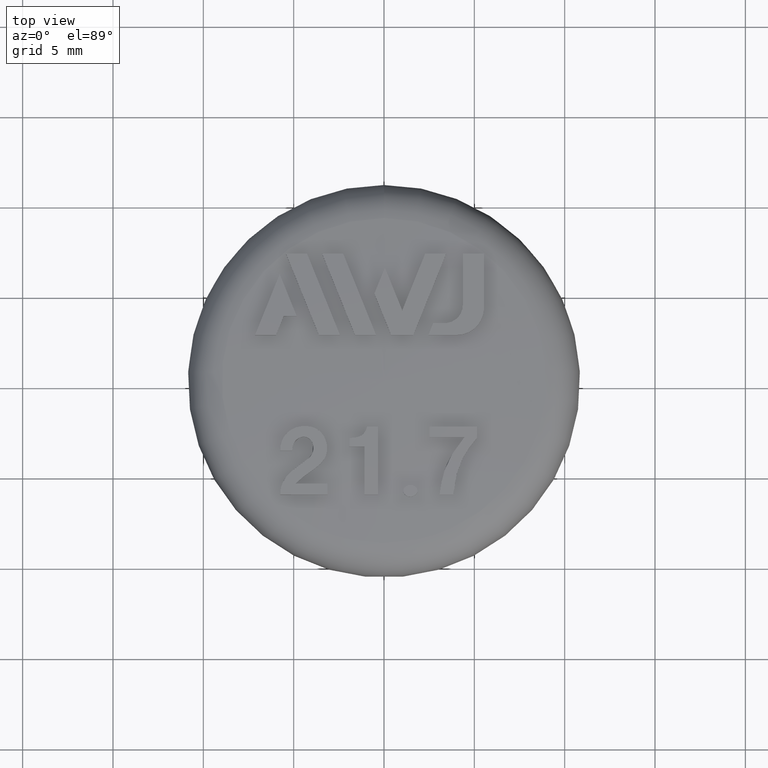
[diagram: clean part render]
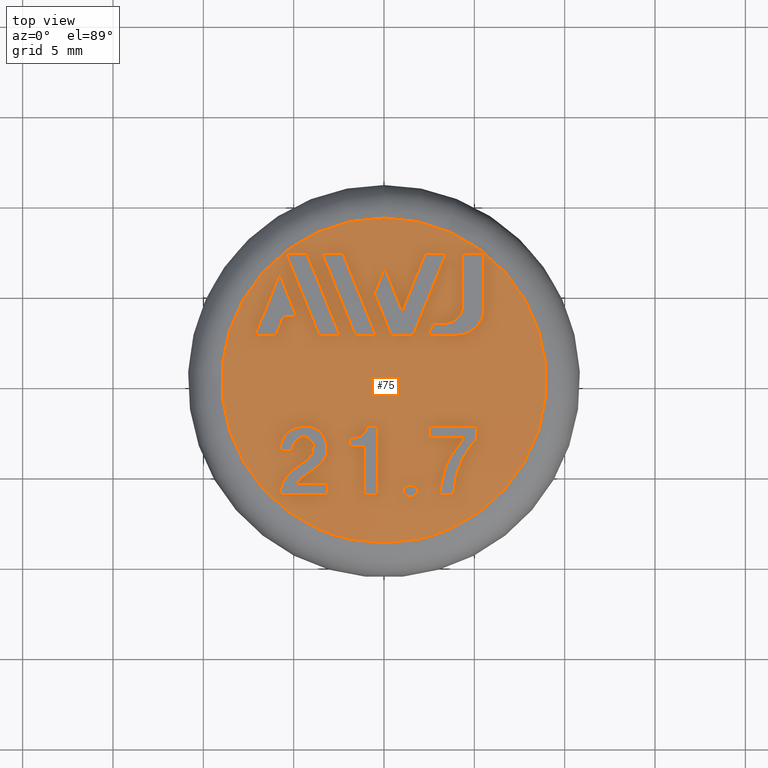
[diagram: same view with one face highlighted and labeled with its STEP entity id]
A machine part, top view. The second image highlights one B-rep face of the part: STEP entity #75.
In plain terms, the highlighted face is a freeform B-spline surface patch.
Its self-contained STEP definition (entity closure, byte-faithful):
#75 = ADVANCED_FACE( '', ( #159, #160, #161, #162, #163, #164, #165, #166, #167, #168, #169 ), #170, .T. );
#159 = FACE_BOUND( '', #359, .T. );
#160 = FACE_BOUND( '', #360, .T. );
#161 = FACE_BOUND( '', #361, .T. );
#162 = FACE_BOUND( '', #362, .T. );
#163 = FACE_BOUND( '', #363, .T. );
#164 = FACE_OUTER_BOUND( '', #364, .T. );
#165 = FACE_BOUND( '', #365, .T. );
#166 = FACE_BOUND( '', #366, .T. );
#167 = FACE_BOUND( '', #367, .T. );
#168 = FACE_BOUND( '', #368, .T. );
#169 = FACE_BOUND( '', #369, .T. );
#170 = ( B_SPLINE_SURFACE( 3, 3, ( ( #371, #372, #373, #374, #375, #376, #377 ), ( #378, #379, #380, #381, #382, #383, #384 ), ( #385, #386, #387, #388, #389, #390, #391 ), ( #392, #393, #394, #395, #396, #397, #398 ) ), .UNSPECIFIED., .F., .T., .F. )B_SPLINE_SURFACE_WITH_KNOTS( ( 4, 4 ), ( 4, 3, 4 ), ( 0.000000000000000, 6.28318530717959 ), ( -1.56095892021141, -1.53096552139604, -1.50097212258067 ), .UNSPECIFIED. )RATIONAL_B_SPLINE_SURFACE( ( ( 1.00000000000000, 0.333333333333333, 0.333333333333333, 1.00000000000000, 0.333333333333333, 0.333333333333333, 1.00000000000000 ), ( 0.999700154488696, 0.333233384829565, 0.333233384829565, 0.999700154488696, 0.333233384829565, 0.333233384829565, 0.999700154488696 ), ( 0.999700154488696, 0.333233384829565, 0.333233384829565, 0.999700154488696, 0.333233384829565, 0.333233384829565, 0.999700154488696 ), ( 1.00000000000000, 0.333333333333333, 0.333333333333333, 1.00000000000000, 0.333333333333333, 0.333333333333333, 1.00000000000000 ) ) )BOUNDED_SURFACE(  )REPRESENTATION_ITEM( '' )GEOMETRIC_REPRESENTATION_ITEM(  )SURFACE(  ) );
#359 = EDGE_LOOP( '', ( #797, #798, #799, #800, #801 ) );
#360 = EDGE_LOOP( '', ( #802, #803, #804, #805 ) );
#361 = EDGE_LOOP( '', ( #806, #807, #808, #809, #810, #811, #812 ) );
#362 = EDGE_LOOP( '', ( #813 ) );
#363 = EDGE_LOOP( '', ( #814, #815, #816, #817, #818, #819 ) );
#364 = EDGE_LOOP( '', ( #820 ) );
#365 = VERTEX_LOOP( '', #821 );
#366 = EDGE_LOOP( '', ( #822, #823, #824, #825, #826, #827, #828 ) );
#367 = EDGE_LOOP( '', ( #829, #830, #831, #832, #833, #834, #835, #836 ) );
#368 = EDGE_LOOP( '', ( #837, #838, #839, #840 ) );
#369 = EDGE_LOOP( '', ( #841, #842, #843, #844, #845, #846, #847 ) );
#371 = CARTESIAN_POINT( '', ( 0.000000000000000, 8.98953496199147, 25.6417501086065 ) );
#372 = CARTESIAN_POINT( '', ( 17.9790699239829, 8.98953496199147, 25.6417501086065 ) );
#373 = CARTESIAN_POINT( '', ( 17.9790699239829, -8.98953496199147, 25.6417501086065 ) );
#374 = CARTESIAN_POINT( '', ( 0.000000000000000, -8.98953496199147, 25.6417501086065 ) );
#375 = CARTESIAN_POINT( '', ( -17.9790699239829, -8.98953496199147, 25.6417501086065 ) );
#376 = CARTESIAN_POINT( '', ( -17.9790699239829, 8.98953496199147, 25.6417501086065 ) );
#377 = CARTESIAN_POINT( '', ( 0.000000000000000, 8.98953496199147, 25.6417501086065 ) );
#378 = CARTESIAN_POINT( '', ( 0.000000000000000, 5.99705493577099, 25.8510378775544 ) );
#379 = CARTESIAN_POINT( '', ( 11.9941098715420, 5.99705493577099, 25.8510378775543 ) );
#380 = CARTESIAN_POINT( '', ( 11.9941098715420, -5.99705493577099, 25.8510378775543 ) );
#381 = CARTESIAN_POINT( '', ( 0.000000000000000, -5.99705493577099, 25.8510378775544 ) );
#382 = CARTESIAN_POINT( '', ( -11.9941098715420, -5.99705493577099, 25.8510378775543 ) );
#383 = CARTESIAN_POINT( '', ( -11.9941098715420, 5.99705493577099, 25.8510378775543 ) );
#384 = CARTESIAN_POINT( '', ( 0.000000000000000, 5.99705493577099, 25.8510378775544 ) );
#385 = CARTESIAN_POINT( '', ( 0.000000000000000, 2.99964452171564, 25.9704903252991 ) );
#386 = CARTESIAN_POINT( '', ( 5.99928904343128, 2.99964452171564, 25.9704903252991 ) );
#387 = CARTESIAN_POINT( '', ( 5.99928904343128, -2.99964452171564, 25.9704903252991 ) );
#388 = CARTESIAN_POINT( '', ( 0.000000000000000, -2.99964452171564, 25.9704903252991 ) );
#389 = CARTESIAN_POINT( '', ( -5.99928904343128, -2.99964452171564, 25.9704903252991 ) );
#390 = CARTESIAN_POINT( '', ( -5.99928904343128, 2.99964452171564, 25.9704903252991 ) );
#391 = CARTESIAN_POINT( '', ( 0.000000000000000, 2.99964452171564, 25.9704903252991 ) );
#392 = CARTESIAN_POINT( '', ( 0.000000000000000, -1.40946282423116E-014, 26.0000000000000 ) );
#393 = CARTESIAN_POINT( '', ( -2.86790990261521E-014, -1.40946282423116E-014, 26.0000000000000 ) );
#394 = CARTESIAN_POINT( '', ( -2.86790990261521E-014, 1.45844707838405E-014, 26.0000000000000 ) );
#395 = CARTESIAN_POINT( '', ( 0.000000000000000, 1.45844707838405E-014, 26.0000000000000 ) );
#396 = CARTESIAN_POINT( '', ( 2.86790990261521E-014, 1.45844707838405E-014, 26.0000000000000 ) );
#397 = CARTESIAN_POINT( '', ( 2.86790990261521E-014, -1.40946282423116E-014, 26.0000000000000 ) );
#398 = CARTESIAN_POINT( '', ( 0.000000000000000, -1.40946282423116E-014, 26.0000000000000 ) );
#797 = ORIENTED_EDGE( '', *, *, #1403, .F. );
#798 = ORIENTED_EDGE( '', *, *, #1404, .F. );
#799 = ORIENTED_EDGE( '', *, *, #1405, .F. );
#800 = ORIENTED_EDGE( '', *, *, #1406, .F. );
#801 = ORIENTED_EDGE( '', *, *, #1407, .F. );
#802 = ORIENTED_EDGE( '', *, *, #1408, .F. );
#803 = ORIENTED_EDGE( '', *, *, #1409, .F. );
#804 = ORIENTED_EDGE( '', *, *, #1410, .F. );
#805 = ORIENTED_EDGE( '', *, *, #1411, .F. );
#806 = ORIENTED_EDGE( '', *, *, #1412, .F. );
#807 = ORIENTED_EDGE( '', *, *, #1413, .F. );
#808 = ORIENTED_EDGE( '', *, *, #1414, .F. );
#809 = ORIENTED_EDGE( '', *, *, #1415, .F. );
#810 = ORIENTED_EDGE( '', *, *, #1416, .F. );
#811 = ORIENTED_EDGE( '', *, *, #1417, .F. );
#812 = ORIENTED_EDGE( '', *, *, #1418, .F. );
#813 = ORIENTED_EDGE( '', *, *, #1419, .T. );
#814 = ORIENTED_EDGE( '', *, *, #1420, .F. );
#815 = ORIENTED_EDGE( '', *, *, #1421, .F. );
#816 = ORIENTED_EDGE( '', *, *, #1422, .F. );
#817 = ORIENTED_EDGE( '', *, *, #1423, .F. );
#818 = ORIENTED_EDGE( '', *, *, #1424, .F. );
#819 = ORIENTED_EDGE( '', *, *, #1425, .F. );
#820 = ORIENTED_EDGE( '', *, *, #1426, .F. );
#821 = VERTEX_POINT( '', #1427 );
#822 = ORIENTED_EDGE( '', *, *, #1428, .F. );
#823 = ORIENTED_EDGE( '', *, *, #1429, .F. );
#824 = ORIENTED_EDGE( '', *, *, #1430, .F. );
#825 = ORIENTED_EDGE( '', *, *, #1431, .F. );
#826 = ORIENTED_EDGE( '', *, *, #1432, .F. );
#827 = ORIENTED_EDGE( '', *, *, #1433, .F. );
#828 = ORIENTED_EDGE( '', *, *, #1434, .F. );
#829 = ORIENTED_EDGE( '', *, *, #1435, .F. );
#830 = ORIENTED_EDGE( '', *, *, #1436, .F. );
#831 = ORIENTED_EDGE( '', *, *, #1437, .F. );
#832 = ORIENTED_EDGE( '', *, *, #1438, .F. );
#833 = ORIENTED_EDGE( '', *, *, #1439, .F. );
#834 = ORIENTED_EDGE( '', *, *, #1440, .F. );
#835 = ORIENTED_EDGE( '', *, *, #1441, .F. );
#836 = ORIENTED_EDGE( '', *, *, #1442, .F. );
#837 = ORIENTED_EDGE( '', *, *, #1443, .F. );
#838 = ORIENTED_EDGE( '', *, *, #1444, .F. );
#839 = ORIENTED_EDGE( '', *, *, #1445, .F. );
#840 = ORIENTED_EDGE( '', *, *, #1446, .F. );
#841 = ORIENTED_EDGE( '', *, *, #1447, .F. );
#842 = ORIENTED_EDGE( '', *, *, #1448, .F. );
#843 = ORIENTED_EDGE( '', *, *, #1449, .F. );
#844 = ORIENTED_EDGE( '', *, *, #1450, .F. );
#845 = ORIENTED_EDGE( '', *, *, #1451, .F. );
#846 = ORIENTED_EDGE( '', *, *, #1452, .F. );
#847 = ORIENTED_EDGE( '', *, *, #1453, .F. );
#1403 = EDGE_CURVE( '', #1574, #1575, #1576, .T. );
#1404 = EDGE_CURVE( '', #1577, #1574, #1578, .T. );
#1405 = EDGE_CURVE( '', #1579, #1577, #1580, .T. );
#1406 = EDGE_CURVE( '', #1581, #1579, #1582, .T. );
#1407 = EDGE_CURVE( '', #1575, #1581, #1583, .T. );
#1408 = EDGE_CURVE( '', #1584, #1585, #1586, .T. );
#1409 = EDGE_CURVE( '', #1587, #1584, #1588, .T. );
#1410 = EDGE_CURVE( '', #1589, #1587, #1590, .T. );
#1411 = EDGE_CURVE( '', #1585, #1589, #1591, .T. );
#1412 = EDGE_CURVE( '', #1592, #1593, #1594, .T. );
#1413 = EDGE_CURVE( '', #1595, #1592, #1596, .T. );
#1414 = EDGE_CURVE( '', #1597, #1595, #1598, .T. );
#1415 = EDGE_CURVE( '', #1599, #1597, #1600, .T. );
#1416 = EDGE_CURVE( '', #1601, #1599, #1602, .T. );
#1417 = EDGE_CURVE( '', #1603, #1601, #1604, .T. );
#1418 = EDGE_CURVE( '', #1593, #1603, #1605, .T. );
#1419 = EDGE_CURVE( '', #1606, #1606, #1607, .T. );
#1420 = EDGE_CURVE( '', #1608, #1609, #1610, .T. );
#1421 = EDGE_CURVE( '', #1611, #1608, #1612, .T. );
#1422 = EDGE_CURVE( '', #1613, #1611, #1614, .T. );
#1423 = EDGE_CURVE( '', #1615, #1613, #1616, .T. );
#1424 = EDGE_CURVE( '', #1617, #1615, #1618, .T. );
#1425 = EDGE_CURVE( '', #1609, #1617, #1619, .T. );
#1426 = EDGE_CURVE( '', #1620, #1620, #1621, .T. );
#1427 = CARTESIAN_POINT( '', ( -2.16840434497101E-016, 2.44921270764477E-016, 26.0000000000000 ) );
#1428 = EDGE_CURVE( '', #1622, #1623, #1624, .T. );
#1429 = EDGE_CURVE( '', #1625, #1622, #1626, .T. );
#1430 = EDGE_CURVE( '', #1627, #1625, #1628, .T. );
#1431 = EDGE_CURVE( '', #1629, #1627, #1630, .T. );
#1432 = EDGE_CURVE( '', #1631, #1629, #1632, .T. );
#1433 = EDGE_CURVE( '', #1633, #1631, #1634, .T. );
#1434 = EDGE_CURVE( '', #1623, #1633, #1635, .T. );
#1435 = EDGE_CURVE( '', #1636, #1637, #1638, .T. );
#1436 = EDGE_CURVE( '', #1639, #1636, #1640, .T. );
#1437 = EDGE_CURVE( '', #1641, #1639, #1642, .T. );
#1438 = EDGE_CURVE( '', #1643, #1641, #1644, .T. );
#1439 = EDGE_CURVE( '', #1645, #1643, #1646, .T. );
#1440 = EDGE_CURVE( '', #1647, #1645, #1648, .T. );
#1441 = EDGE_CURVE( '', #1649, #1647, #1650, .T. );
#1442 = EDGE_CURVE( '', #1637, #1649, #1651, .T. );
#1443 = EDGE_CURVE( '', #1652, #1653, #1654, .T. );
#1444 = EDGE_CURVE( '', #1655, #1652, #1656, .T. );
#1445 = EDGE_CURVE( '', #1657, #1655, #1658, .T. );
#1446 = EDGE_CURVE( '', #1653, #1657, #1659, .T. );
#1447 = EDGE_CURVE( '', #1660, #1661, #1662, .T. );
#1448 = EDGE_CURVE( '', #1663, #1660, #1664, .T. );
#1449 = EDGE_CURVE( '', #1665, #1663, #1666, .T. );
#1450 = EDGE_CURVE( '', #1667, #1665, #1668, .T. );
#1451 = EDGE_CURVE( '', #1669, #1667, #1670, .T. );
#1452 = EDGE_CURVE( '', #1671, #1669, #1672, .T. );
#1453 = EDGE_CURVE( '', #1661, #1671, #1673, .T. );
#1574 = VERTEX_POINT( '', #1866 );
#1575 = VERTEX_POINT( '', #1867 );
#1576 = B_SPLINE_CURVE_WITH_KNOTS( '', 3, ( #1868, #1869, #1870, #1871 ), .UNSPECIFIED., .F., .F., ( 4, 4 ), ( 2.15753164422572E-007, 0.00363668813933032 ), .UNSPECIFIED. );
#1577 = VERTEX_POINT( '', #1872 );
#1578 = B_SPLINE_CURVE_WITH_KNOTS( '', 3, ( #1873, #1874, #1875, #1876 ), .UNSPECIFIED., .F., .F., ( 4, 4 ), ( 2.15877947512081E-007, 0.00251950999364951 ), .UNSPECIFIED. );
#1579 = VERTEX_POINT( '', #1877 );
#1580 = B_SPLINE_CURVE_WITH_KNOTS( '', 3, ( #1878, #1879, #1880, #1881, #1882, #1883 ), .UNSPECIFIED., .F., .F., ( 4, 2, 4 ), ( 0.944590249355854, 0.944951902050673, 0.945313554745493 ), .UNSPECIFIED. );
#1581 = VERTEX_POINT( '', #1884 );
#1582 = B_SPLINE_CURVE_WITH_KNOTS( '', 3, ( #1885, #1886, #1887, #1888 ), .UNSPECIFIED., .F., .F., ( 4, 4 ), ( 2.15726755502883E-007, 0.00112047704000817 ), .UNSPECIFIED. );
#1583 = B_SPLINE_CURVE_WITH_KNOTS( '', 3, ( #1889, #1890, #1891, #1892, #1893, #1894 ), .UNSPECIFIED., .F., .F., ( 4, 2, 4 ), ( 0.944770910898295, 0.945352700298914, 0.945934489699534 ), .UNSPECIFIED. );
#1584 = VERTEX_POINT( '', #1895 );
#1585 = VERTEX_POINT( '', #1896 );
#1586 = B_SPLINE_CURVE_WITH_KNOTS( '', 3, ( #1897, #1898, #1899, #1900, #1901, #1902 ), .UNSPECIFIED., .F., .F., ( 4, 2, 4 ), ( 0.944696127065317, 0.945277433020610, 0.945858738975903 ), .UNSPECIFIED. );
#1587 = VERTEX_POINT( '', #1903 );
#1588 = B_SPLINE_CURVE_WITH_KNOTS( '', 3, ( #1904, #1905, #1906, #1907 ), .UNSPECIFIED., .F., .F., ( 4, 4 ), ( 2.16092323871086E-007, 0.00485515278388468 ), .UNSPECIFIED. );
#1589 = VERTEX_POINT( '', #1908 );
#1590 = B_SPLINE_CURVE_WITH_KNOTS( '', 3, ( #1909, #1910, #1911, #1912, #1913, #1914 ), .UNSPECIFIED., .F., .F., ( 4, 2, 4 ), ( 0.943262957051304, 0.943844024714291, 0.944425092377277 ), .UNSPECIFIED. );
#1591 = B_SPLINE_CURVE_WITH_KNOTS( '', 3, ( #1915, #1916, #1917, #1918 ), .UNSPECIFIED., .F., .F., ( 4, 4 ), ( 2.15776270848999E-007, 0.00485467562281113 ), .UNSPECIFIED. );
#1592 = VERTEX_POINT( '', #1919 );
#1593 = VERTEX_POINT( '', #1920 );
#1594 = B_SPLINE_CURVE_WITH_KNOTS( '', 3, ( #1921, #1922, #1923, #1924, #1925, #1926 ), .UNSPECIFIED., .F., .F., ( 4, 2, 4 ), ( 0.943616339389011, 0.944926302673473, 0.946236265957935 ), .UNSPECIFIED. );
#1595 = VERTEX_POINT( '', #1927 );
#1596 = B_SPLINE_CURVE_WITH_KNOTS( '', 3, ( #1928, #1929, #1930, #1931, #1932, #1933 ), .UNSPECIFIED., .F., .F., ( 4, 2, 4 ), ( 0.944150040501290, 0.944468296561609, 0.944786552621928 ), .UNSPECIFIED. );
#1597 = VERTEX_POINT( '', #1934 );
#1598 = B_SPLINE_CURVE_WITH_KNOTS( '', 3, ( #1935, #1936, #1937, #1938, #1939, #1940, #1941, #1942, #1943, #1944 ), .UNSPECIFIED., .F., .F., ( 4, 2, 2, 2, 4 ), ( 0.000000000000000, 0.000871578972149876, 0.00174315794429975, 0.00261473691644963, 0.00348631588859951 ), .UNSPECIFIED. );
#1599 = VERTEX_POINT( '', #1945 );
#1600 = B_SPLINE_CURVE_WITH_KNOTS( '', 3, ( #1946, #1947, #1948, #1949, #1950, #1951 ), .UNSPECIFIED., .F., .F., ( 4, 2, 4 ), ( 0.943720692822601, 0.944102630472798, 0.944484568122996 ), .UNSPECIFIED. );
#1601 = VERTEX_POINT( '', #1952 );
#1602 = B_SPLINE_CURVE_WITH_KNOTS( '', 3, ( #1953, #1954, #1955, #1956, #1957, #1958, #1959, #1960, #1961, #1962 ), .UNSPECIFIED., .F., .F., ( 4, 2, 2, 2, 4 ), ( 0.000000000000000, 0.000883176503601131, 0.00176635300720226, 0.00264952951080339, 0.00353270601440453 ), .UNSPECIFIED. );
#1603 = VERTEX_POINT( '', #1963 );
#1604 = B_SPLINE_CURVE_WITH_KNOTS( '', 3, ( #1964, #1965, #1966, #1967, #1968, #1969 ), .UNSPECIFIED., .F., .F., ( 4, 2, 4 ), ( 0.943853214456466, 0.944813596997099, 0.945773979537732 ), .UNSPECIFIED. );
#1605 = B_SPLINE_CURVE_WITH_KNOTS( '', 3, ( #1970, #1971, #1972, #1973, #1974, #1975 ), .UNSPECIFIED., .F., .F., ( 4, 2, 4 ), ( 0.944374504958248, 0.944674489245881, 0.944974473533513 ), .UNSPECIFIED. );
#1606 = VERTEX_POINT( '', #1976 );
#1607 = B_SPLINE_CURVE_WITH_KNOTS( '', 3, ( #1977, #1978, #1979, #1980, #1981, #1982, #1983, #1984, #1985, #1986, #1987, #1988, #1989, #1990, #1991, #1992, #1993, #1994, #1995, #1996, #1997, #1998, #1999, #2000, #2001, #2002 ), .UNSPECIFIED., .T., .F., ( 2, 2, 2, 2, 2, 2, 2, 2, 2, 2, 2, 2, 2, 2, 2 ), ( -0.000280127490306940, 0.000000000000000, 0.000280127490306942, 0.000420191235460413, 0.000560254980613883, 0.000700318725767354, 0.000840382470920825, 0.00112050996122777, 0.00140063745153471, 0.00154070119668818, 0.00168076494184165, 0.00182082868699512, 0.00196089243214859, 0.00224101992245553, 0.00252114741276247 ), .UNSPECIFIED. );
#1608 = VERTEX_POINT( '', #2003 );
#1609 = VERTEX_POINT( '', #2004 );
#1610 = B_SPLINE_CURVE_WITH_KNOTS( '', 3, ( #2005, #2006, #2007, #2008, #2009, #2010 ), .UNSPECIFIED., .F., .F., ( 4, 2, 4 ), ( 0.943383864945581, 0.944267948269576, 0.945152031593570 ), .UNSPECIFIED. );
#1611 = VERTEX_POINT( '', #2011 );
#1612 = B_SPLINE_CURVE_WITH_KNOTS( '', 3, ( #2012, #2013, #2014, #2015, #2016, #2017 ), .UNSPECIFIED., .F., .F., ( 4, 2, 4 ), ( 0.944760673953935, 0.945061068960873, 0.945361463967811 ), .UNSPECIFIED. );
#1613 = VERTEX_POINT( '', #2018 );
#1614 = B_SPLINE_CURVE_WITH_KNOTS( '', 3, ( #2019, #2020, #2021, #2022, #2023, #2024 ), .UNSPECIFIED., .F., .F., ( 4, 2, 4 ), ( 0.942917086239352, 0.944227160788539, 0.945537235337727 ), .UNSPECIFIED. );
#1615 = VERTEX_POINT( '', #2025 );
#1616 = B_SPLINE_CURVE_WITH_KNOTS( '', 3, ( #2026, #2027, #2028, #2029, #2030, #2031, #2032, #2033, #2034, #2035, #2036, #2037, #2038, #2039, #2040, #2041, #2042, #2043, #2044, #2045, #2046, #2047, #2048, #2049, #2050, #2051, #2052, #2053, #2054, #2055, #2056, #2057, #2058, #2059 ), .UNSPECIFIED., .F., .F., ( 4, 2, 2, 2, 2, 2, 2, 2, 2, 2, 2, 2, 2, 2, 2, 2, 4 ), ( 0.000000000000000, 0.000331152226651329, 0.000662304453302658, 0.000827880566628322, 0.000993456679953986, 0.00115903279327965, 0.00132460890660531, 0.00165576113325664, 0.00198691335990797, 0.00231806558655930, 0.00264921781321063, 0.00298037003986196, 0.00331152226651329, 0.00397382671981594, 0.00463613117311860, 0.00496728339976993, 0.00529843562642126 ), .UNSPECIFIED. );
#1617 = VERTEX_POINT( '', #2060 );
#1618 = B_SPLINE_CURVE_WITH_KNOTS( '', 3, ( #2061, #2062, #2063, #2064, #2065, #2066 ), .UNSPECIFIED., .F., .F., ( 4, 2, 4 ), ( 0.944556335513515, 0.944883952290048, 0.945211569066581 ), .UNSPECIFIED. );
#1619 = B_SPLINE_CURVE_WITH_KNOTS( '', 3, ( #2067, #2068, #2069, #2070, #2071, #2072, #2073, #2074, #2075, #2076, #2077, #2078, #2079, #2080, #2081, #2082, #2083, #2084, #2085, #2086, #2087, #2088, #2089, #2090, #2091, #2092, #2093, #2094, #2095, #2096, #2097, #2098, #2099, #2100, #2101, #2102 ), .UNSPECIFIED., .F., .F., ( 4, 2, 2, 2, 2, 2, 2, 2, 2, 2, 2, 2, 2, 2, 2, 2, 2, 4 ), ( 0.000000000000000, 0.000212727333888267, 0.000425454667776533, 0.000850909335553067, 0.00127636400332960, 0.00170181867110613, 0.00212727333888267, 0.00255272800665920, 0.00297818267443573, 0.00340363734221226, 0.00382909200998879, 0.00425454667776532, 0.00468000134554186, 0.00510545601331839, 0.00553091068109492, 0.00595636534887145, 0.00638182001664798, 0.00680727468442451 ), .UNSPECIFIED. );
#1620 = VERTEX_POINT( '', #2103 );
#1621 = CIRCLE( '', #2104, 8.98953496199148 );
#1622 = VERTEX_POINT( '', #2105 );
#1623 = VERTEX_POINT( '', #2106 );
#1624 = B_SPLINE_CURVE_WITH_KNOTS( '', 3, ( #2107, #2108, #2109, #2110, #2111, #2112, #2113, #2114, #2115, #2116 ), .UNSPECIFIED., .F., .F., ( 4, 2, 2, 2, 4 ), ( 4.84869951806108E-019, 0.000317296503478030, 0.000634593006956060, 0.000951889510434089, 0.00126918601391212 ), .UNSPECIFIED. );
#1625 = VERTEX_POINT( '', #2117 );
#1626 = B_SPLINE_CURVE_WITH_KNOTS( '', 3, ( #2118, #2119, #2120, #2121, #2122, #2123 ), .UNSPECIFIED., .F., .F., ( 4, 2, 4 ), ( 0.944902179747818, 0.945207727560565, 0.945513275373312 ), .UNSPECIFIED. );
#1627 = VERTEX_POINT( '', #2124 );
#1628 = B_SPLINE_CURVE_WITH_KNOTS( '', 3, ( #2125, #2126, #2127, #2128, #2129, #2130 ), .UNSPECIFIED., .F., .F., ( 4, 2, 4 ), ( 0.943464461131691, 0.945339217355133, 0.947213973578576 ), .UNSPECIFIED. );
#1629 = VERTEX_POINT( '', #2131 );
#1630 = B_SPLINE_CURVE_WITH_KNOTS( '', 3, ( #2132, #2133, #2134, #2135, #2136, #2137 ), .UNSPECIFIED., .F., .F., ( 4, 2, 4 ), ( 0.943796103350487, 0.944166998594483, 0.944537893838478 ), .UNSPECIFIED. );
#1631 = VERTEX_POINT( '', #2138 );
#1632 = B_SPLINE_CURVE_WITH_KNOTS( '', 3, ( #2139, #2140, #2141, #2142, #2143, #2144 ), .UNSPECIFIED., .F., .F., ( 4, 2, 4 ), ( 0.943206226589398, 0.944534225579990, 0.945862224570582 ), .UNSPECIFIED. );
#1633 = VERTEX_POINT( '', #2145 );
#1634 = B_SPLINE_CURVE_WITH_KNOTS( '', 3, ( #2146, #2147, #2148, #2149, #2150, #2151 ), .UNSPECIFIED., .F., .F., ( 4, 2, 4 ), ( 0.944300513972057, 0.944725946593636, 0.945151379215215 ), .UNSPECIFIED. );
#1635 = B_SPLINE_CURVE_WITH_KNOTS( '', 3, ( #2152, #2153, #2154, #2155, #2156, #2157 ), .UNSPECIFIED., .F., .F., ( 4, 2, 4 ), ( 0.944456439210992, 0.944683725786204, 0.944911012361416 ), .UNSPECIFIED. );
#1636 = VERTEX_POINT( '', #2158 );
#1637 = VERTEX_POINT( '', #2159 );
#1638 = B_SPLINE_CURVE_WITH_KNOTS( '', 3, ( #2160, #2161, #2162, #2163, #2164, #2165 ), .UNSPECIFIED., .F., .F., ( 4, 2, 4 ), ( 0.943440287077963, 0.944028320268851, 0.944616353459739 ), .UNSPECIFIED. );
#1639 = VERTEX_POINT( '', #2166 );
#1640 = B_SPLINE_CURVE_WITH_KNOTS( '', 3, ( #2167, #2168, #2169, #2170, #2171, #2172 ), .UNSPECIFIED., .F., .F., ( 4, 2, 4 ), ( 0.942867419981177, 0.944367337210816, 0.945867254440456 ), .UNSPECIFIED. );
#1641 = VERTEX_POINT( '', #2173 );
#1642 = B_SPLINE_CURVE_WITH_KNOTS( '', 3, ( #2174, #2175, #2176, #2177, #2178, #2179, #2180, #2181, #2182, #2183, #2184, #2185, #2186, #2187 ), .UNSPECIFIED., .F., .F., ( 4, 2, 2, 2, 2, 2, 4 ), ( 8.42476020472982E-005, 0.000377746319178769, 0.000671245036310240, 0.00125824247057318, 0.00184523990483613, 0.00213873862196760, 0.00243223733909907 ), .UNSPECIFIED. );
#1643 = VERTEX_POINT( '', #2188 );
#1644 = B_SPLINE_CURVE_WITH_KNOTS( '', 3, ( #2189, #2190, #2191, #2192, #2193, #2194 ), .UNSPECIFIED., .F., .F., ( 4, 2, 4 ), ( 0.944129994252138, 0.944919293244353, 0.945708592236568 ), .UNSPECIFIED. );
#1645 = VERTEX_POINT( '', #2195 );
#1646 = B_SPLINE_CURVE_WITH_KNOTS( '', 3, ( #2196, #2197, #2198, #2199 ), .UNSPECIFIED., .F., .F., ( 4, 4 ), ( 2.15843115163035E-007, 0.000705864440400253 ), .UNSPECIFIED. );
#1647 = VERTEX_POINT( '', #2200 );
#1648 = B_SPLINE_CURVE_WITH_KNOTS( '', 3, ( #2201, #2202, #2203, #2204, #2205, #2206 ), .UNSPECIFIED., .F., .F., ( 4, 2, 4 ), ( 0.944504175820526, 0.944823626889192, 0.945143077957859 ), .UNSPECIFIED. );
#1649 = VERTEX_POINT( '', #2207 );
#1650 = B_SPLINE_CURVE_WITH_KNOTS( '', 3, ( #2208, #2209, #2210, #2211, #2212, #2213, #2214, #2215, #2216, #2217 ), .UNSPECIFIED., .F., .F., ( 4, 2, 2, 2, 4 ), ( 5.62197966612846E-005, 0.000447518793699432, 0.000838817790737579, 0.00123011678777573, 0.00162141578481387 ), .UNSPECIFIED. );
#1651 = B_SPLINE_CURVE_WITH_KNOTS( '', 3, ( #2218, #2219, #2220, #2221, #2222, #2223 ), .UNSPECIFIED., .F., .F., ( 4, 2, 4 ), ( 0.943359903531679, 0.944783017210247, 0.946206130888815 ), .UNSPECIFIED. );
#1652 = VERTEX_POINT( '', #2224 );
#1653 = VERTEX_POINT( '', #2225 );
#1654 = B_SPLINE_CURVE_WITH_KNOTS( '', 3, ( #2226, #2227, #2228, #2229, #2230, #2231 ), .UNSPECIFIED., .F., .F., ( 4, 2, 4 ), ( 0.944445710517553, 0.945026876897312, 0.945608043277072 ), .UNSPECIFIED. );
#1655 = VERTEX_POINT( '', #2232 );
#1656 = B_SPLINE_CURVE_WITH_KNOTS( '', 3, ( #2233, #2234, #2235, #2236 ), .UNSPECIFIED., .F., .F., ( 4, 4 ), ( 2.16151314809661E-007, 0.00485604835334027 ), .UNSPECIFIED. );
#1657 = VERTEX_POINT( '', #2237 );
#1658 = B_SPLINE_CURVE_WITH_KNOTS( '', 3, ( #2238, #2239, #2240, #2241, #2242, #2243 ), .UNSPECIFIED., .F., .F., ( 4, 2, 4 ), ( 0.943591665259866, 0.944172812440224, 0.944753959620582 ), .UNSPECIFIED. );
#1659 = B_SPLINE_CURVE_WITH_KNOTS( '', 3, ( #2244, #2245, #2246, #2247 ), .UNSPECIFIED., .F., .F., ( 4, 4 ), ( 2.15796024448861E-007, 0.00485561903381285 ), .UNSPECIFIED. );
#1660 = VERTEX_POINT( '', #2248 );
#1661 = VERTEX_POINT( '', #2249 );
#1662 = B_SPLINE_CURVE_WITH_KNOTS( '', 3, ( #2250, #2251, #2252, #2253 ), .UNSPECIFIED., .F., .F., ( 4, 4 ), ( 2.15786343880670E-007, 0.00485514746944646 ), .UNSPECIFIED. );
#1663 = VERTEX_POINT( '', #2254 );
#1664 = B_SPLINE_CURVE_WITH_KNOTS( '', 3, ( #2255, #2256, #2257, #2258, #2259, #2260 ), .UNSPECIFIED., .F., .F., ( 4, 2, 4 ), ( 0.944621200354206, 0.945235586975042, 0.945849973595877 ), .UNSPECIFIED. );
#1665 = VERTEX_POINT( '', #2261 );
#1666 = B_SPLINE_CURVE_WITH_KNOTS( '', 3, ( #2262, #2263, #2264, #2265 ), .UNSPECIFIED., .F., .F., ( 4, 4 ), ( 2.15880715353143E-007, 0.00247239462621119 ), .UNSPECIFIED. );
#1667 = VERTEX_POINT( '', #2266 );
#1668 = B_SPLINE_CURVE_WITH_KNOTS( '', 3, ( #2267, #2268, #2269, #2270 ), .UNSPECIFIED., .F., .F., ( 4, 4 ), ( 2.15945148869800E-007, 0.00155279890431983 ), .UNSPECIFIED. );
#1669 = VERTEX_POINT( '', #2271 );
#1670 = B_SPLINE_CURVE_WITH_KNOTS( '', 3, ( #2272, #2273, #2274, #2275 ), .UNSPECIFIED., .F., .F., ( 4, 4 ), ( 2.15791259321564E-007, 0.00256151605953744 ), .UNSPECIFIED. );
#1671 = VERTEX_POINT( '', #2276 );
#1672 = B_SPLINE_CURVE_WITH_KNOTS( '', 3, ( #2277, #2278, #2279, #2280 ), .UNSPECIFIED., .F., .F., ( 4, 4 ), ( 2.16069795956930E-007, 0.00339123975148072 ), .UNSPECIFIED. );
#1673 = B_SPLINE_CURVE_WITH_KNOTS( '', 3, ( #2281, #2282, #2283, #2284, #2285, #2286 ), .UNSPECIFIED., .F., .F., ( 4, 2, 4 ), ( 0.943404302777000, 0.943985451370250, 0.944566599963500 ), .UNSPECIFIED. );
#1866 = CARTESIAN_POINT( '', ( -5.77663600000000, 5.87151300000000, 25.6924955955967 ) );
#1867 = CARTESIAN_POINT( '', ( -7.13863999999912, 2.50000000000000, 25.7346454492674 ) );
#1868 = CARTESIAN_POINT( '', ( -5.77663600000000, 5.87151300000000, 25.6924955955967 ) );
#1869 = CARTESIAN_POINT( '', ( -6.23056236720994, 4.74786090493192, 25.7238116067111 ) );
#1870 = CARTESIAN_POINT( '', ( -6.68456271295536, 3.62402568294640, 25.7380890173607 ) );
#1871 = CARTESIAN_POINT( '', ( -7.13863999999987, 2.50000000000031, 25.7346454492673 ) );
#1872 = CARTESIAN_POINT( '', ( -4.83450049999999, 3.53856800000001, 25.8213023035956 ) );
#1873 = CARTESIAN_POINT( '', ( -4.83450049999999, 3.53856800000001, 25.8213023035956 ) );
#1874 = CARTESIAN_POINT( '', ( -5.14868748019249, 4.31656749636245, 25.7857642663930 ) );
#1875 = CARTESIAN_POINT( '', ( -5.46273080190000, 5.09421126115098, 25.7427324569831 ) );
#1876 = CARTESIAN_POINT( '', ( -5.77663600000000, 5.87151300000000, 25.6924955955968 ) );
#1877 = CARTESIAN_POINT( '', ( -5.55708449999994, 3.53856800000001, 25.7903593865106 ) );
#1878 = CARTESIAN_POINT( '', ( -5.55708449999994, 3.53856800000001, 25.7903593865106 ) );
#1879 = CARTESIAN_POINT( '', ( -5.43671670132753, 3.53856800000001, 25.7958253706185 ) );
#1880 = CARTESIAN_POINT( '', ( -5.31633639951948, 3.53856800000001, 25.8011371737167 ) );
#1881 = CARTESIAN_POINT( '', ( -5.07555055326431, 3.53856800000001, 25.8114495031513 ) );
#1882 = CARTESIAN_POINT( '', ( -4.95498446373802, 3.53856800000001, 25.8164566872684 ) );
#1883 = CARTESIAN_POINT( '', ( -4.83450049999999, 3.53856800000001, 25.8213023035956 ) );
#1884 = CARTESIAN_POINT( '', ( -5.97699849999999, 2.50000000000000, 25.7962033535303 ) );
#1885 = CARTESIAN_POINT( '', ( -5.97699849999999, 2.50000000000000, 25.7962033535303 ) );
#1886 = CARTESIAN_POINT( '', ( -5.83702529020145, 2.84619397437108, 25.7959667570099 ) );
#1887 = CARTESIAN_POINT( '', ( -5.69705103611445, 3.19239053156760, 25.7940134866594 ) );
#1888 = CARTESIAN_POINT( '', ( -5.55708449999998, 3.53856800000003, 25.7903593865105 ) );
#1889 = CARTESIAN_POINT( '', ( -7.13863999999912, 2.50000000000000, 25.7346454492673 ) );
#1890 = CARTESIAN_POINT( '', ( -6.94518440814836, 2.50000000000000, 25.7456683278924 ) );
#1891 = CARTESIAN_POINT( '', ( -6.75169591776146, 2.50000000000000, 25.7563089896214 ) );
#1892 = CARTESIAN_POINT( '', ( -6.36465277061228, 2.50000000000000, 25.7768215887020 ) );
#1893 = CARTESIAN_POINT( '', ( -6.17073597072992, 2.50000000000000, 25.7867119707678 ) );
#1894 = CARTESIAN_POINT( '', ( -5.97699849999999, 2.50000000000000, 25.7962033535303 ) );
#1895 = CARTESIAN_POINT( '', ( -1.60650550000000, 2.50000000000000, 25.9413163652070 ) );
#1896 = CARTESIAN_POINT( '', ( -0.444525499999998, 2.50000000000001, 25.9535196715272 ) );
#1897 = CARTESIAN_POINT( '', ( -1.60650550000001, 2.50000000000000, 25.9413163652070 ) );
#1898 = CARTESIAN_POINT( '', ( -1.41299158071471, 2.50000000000001, 25.9444193917490 ) );
#1899 = CARTESIAN_POINT( '', ( -1.21962566460849, 2.50000000000000, 25.9470148994490 ) );
#1900 = CARTESIAN_POINT( '', ( -0.832072799320703, 2.50000000000000, 25.9511142543055 ) );
#1901 = CARTESIAN_POINT( '', ( -0.638298182212810, 2.50000000000000, 25.9526113943806 ) );
#1902 = CARTESIAN_POINT( '', ( -0.444525499999998, 2.50000000000000, 25.9535196715272 ) );
#1903 = CARTESIAN_POINT( '', ( -3.42348749999999, 6.99670800000001, 25.7208535486703 ) );
#1904 = CARTESIAN_POINT( '', ( -3.42348749999999, 6.99670800000001, 25.7208535486703 ) );
#1905 = CARTESIAN_POINT( '', ( -2.81827355766307, 5.49891089677169, 25.8205727262534 ) );
#1906 = CARTESIAN_POINT( '', ( -2.21261470371491, 4.00001271626163, 25.8941667742693 ) );
#1907 = CARTESIAN_POINT( '', ( -1.60650550000000, 2.50000000000000, 25.9413163652070 ) );
#1908 = CARTESIAN_POINT( '', ( -2.26150800000000, 6.99670800000001, 25.7472125164421 ) );
#1909 = CARTESIAN_POINT( '', ( -2.26150800000000, 6.99670800000001, 25.7472125164421 ) );
#1910 = CARTESIAN_POINT( '', ( -2.45514610465000, 6.99670800000001, 25.7437011452953 ) );
#1911 = CARTESIAN_POINT( '', ( -2.64869245988066, 6.99670800000002, 25.7397478147710 ) );
#1912 = CARTESIAN_POINT( '', ( -3.03612322790188, 6.99670800000001, 25.7309558365589 ) );
#1913 = CARTESIAN_POINT( '', ( -3.22981634920194, 6.99670800000001, 25.7261211582258 ) );
#1914 = CARTESIAN_POINT( '', ( -3.42348749999999, 6.99670800000001, 25.7208535486703 ) );
#1915 = CARTESIAN_POINT( '', ( -0.444525499999998, 2.50000000000001, 25.9535196715272 ) );
#1916 = CARTESIAN_POINT( '', ( -1.05056651570936, 3.99984355031950, 25.9111409162868 ) );
#1917 = CARTESIAN_POINT( '', ( -1.65630503091093, 5.49893846577138, 25.8422155562351 ) );
#1918 = CARTESIAN_POINT( '', ( -2.26150800000000, 6.99670800000001, 25.7472125164421 ) );
#1919 = CARTESIAN_POINT( '', ( 5.14363636363637, -2.56363636363636, 25.8332661377841 ) );
#1920 = CARTESIAN_POINT( '', ( 2.52545454545455, -2.56363636363639, 25.9214077996396 ) );
#1921 = CARTESIAN_POINT( '', ( 5.14363636363635, -2.56363636363636, 25.8332661377840 ) );
#1922 = CARTESIAN_POINT( '', ( 4.70761448063366, -2.56363636363636, 25.8520784118147 ) );
#1923 = CARTESIAN_POINT( '', ( 4.27149937660320, -2.56363636363636, 25.8688970172293 ) );
#1924 = CARTESIAN_POINT( '', ( 3.39852317834271, -2.56363636363636, 25.8983798688030 ) );
#1925 = CARTESIAN_POINT( '', ( 2.96200524875990, -2.56363636363636, 25.9110381660914 ) );
#1926 = CARTESIAN_POINT( '', ( 2.52545454545455, -2.56363636363636, 25.9214077996395 ) );
#1927 = CARTESIAN_POINT( '', ( 5.14363636363637, -3.19999999998173, 25.8179652952233 ) );
#1928 = CARTESIAN_POINT( '', ( 5.14363636363637, -3.19999999998173, 25.8179652952233 ) );
#1929 = CARTESIAN_POINT( '', ( 5.14363636363637, -3.09397508474290, 25.8207816693979 ) );
#1930 = CARTESIAN_POINT( '', ( 5.14363636363637, -2.98798346179417, 25.8234648711709 ) );
#1931 = CARTESIAN_POINT( '', ( 5.14363636363637, -2.77580979690654, 25.8285676627695 ) );
#1932 = CARTESIAN_POINT( '', ( 5.14363636363637, -2.66972304134549, 25.8309848502657 ) );
#1933 = CARTESIAN_POINT( '', ( 5.14363636363637, -2.56363636363636, 25.8332661377840 ) );
#1934 = CARTESIAN_POINT( '', ( 3.83454545454546, -6.34545454545455, 25.7436059168490 ) );
#1935 = CARTESIAN_POINT( '', ( 3.83454545454546, -6.34545454545455, 25.7436059168490 ) );
#1936 = CARTESIAN_POINT( '', ( 3.85463422824825, -6.05528336974762, 25.7577331749710 ) );
#1937 = CARTESIAN_POINT( '', ( 3.89086247663244, -5.76727906818974, 25.7703557111750 ) );
#1938 = CARTESIAN_POINT( '', ( 4.00853033147408, -5.19736666845057, 25.7919917833269 ) );
#1939 = CARTESIAN_POINT( '', ( 4.08893517965591, -4.91941852455808, 25.8008574127309 ) );
#1940 = CARTESIAN_POINT( '', ( 4.30848436313737, -4.38827119175648, 25.8136408795692 ) );
#1941 = CARTESIAN_POINT( '', ( 4.45127017416261, -4.13384646167343, 25.8174630966276 ) );
#1942 = CARTESIAN_POINT( '', ( 4.77395135796759, -3.64944930545124, 25.8207585357810 ) );
#1943 = CARTESIAN_POINT( '', ( 4.95296964297153, -3.42039432765022, 25.8202518863175 ) );
#1944 = CARTESIAN_POINT( '', ( 5.14363636363637, -3.20000000000000, 25.8179652952229 ) );
#1945 = CARTESIAN_POINT( '', ( 3.07090909090909, -6.34545454545455, 25.7648057541667 ) );
#1946 = CARTESIAN_POINT( '', ( 3.07090909090908, -6.34545454545455, 25.7648057541667 ) );
#1947 = CARTESIAN_POINT( '', ( 3.19815888295367, -6.34545454545455, 25.7616501976154 ) );
#1948 = CARTESIAN_POINT( '', ( 3.32534313133906, -6.34545454545455, 25.7583066613028 ) );
#1949 = CARTESIAN_POINT( '', ( 3.57995953722041, -6.34545454545455, 25.7512369642478 ) );
#1950 = CARTESIAN_POINT( '', ( 3.70725754176894, -6.34545454545455, 25.7475143445803 ) );
#1951 = CARTESIAN_POINT( '', ( 3.83454545454546, -6.34545454545455, 25.7436059168490 ) );
#1952 = CARTESIAN_POINT( '', ( 4.44545454545455, -3.16363636363636, 25.8470045531583 ) );
#1953 = CARTESIAN_POINT( '', ( 4.44545454545455, -3.16363636363636, 25.8470045531583 ) );
#1954 = CARTESIAN_POINT( '', ( 4.25859354117113, -3.39202203553832, 25.8479215443697 ) );
#1955 = CARTESIAN_POINT( '', ( 4.07999292387623, -3.62626315666672, 25.8472615431389 ) );
#1956 = CARTESIAN_POINT( '', ( 3.75143433448372, -4.11506014798356, 25.8421381132285 ) );
#1957 = CARTESIAN_POINT( '', ( 3.59979356902602, -4.37085405525072, 25.8376664210134 ) );
#1958 = CARTESIAN_POINT( '', ( 3.36699262457089, -4.90694254234099, 25.8236351541344 ) );
#1959 = CARTESIAN_POINT( '', ( 3.28361644950361, -5.18839392081496, 25.8141239865744 ) );
#1960 = CARTESIAN_POINT( '', ( 3.15254009188314, -5.76273260062603, 25.7917224271408 ) );
#1961 = CARTESIAN_POINT( '', ( 3.10598844974933, -6.05312655511919, 25.7789149291522 ) );
#1962 = CARTESIAN_POINT( '', ( 3.07090909090909, -6.34545454545455, 25.7648057541667 ) );
#1963 = CARTESIAN_POINT( '', ( 2.52545454545449, -3.16363636363636, 25.9055225194087 ) );
#1964 = CARTESIAN_POINT( '', ( 2.52545454545449, -3.16363636363636, 25.9055225194087 ) );
#1965 = CARTESIAN_POINT( '', ( 2.84550456345539, -3.16363636363636, 25.8981648415730 ) );
#1966 = CARTESIAN_POINT( '', ( 3.16553454254106, -3.16363636363636, 25.8895569095107 ) );
#1967 = CARTESIAN_POINT( '', ( 3.80555707564475, -3.16363636363636, 25.8700060462852 ) );
#1968 = CARTESIAN_POINT( '', ( 4.12553876620843, -3.16363636363636, 25.8590626537550 ) );
#1969 = CARTESIAN_POINT( '', ( 4.44545454545455, -3.16363636363636, 25.8470045531582 ) );
#1970 = CARTESIAN_POINT( '', ( 2.52545454545455, -2.56363636363639, 25.9214077996395 ) );
#1971 = CARTESIAN_POINT( '', ( 2.52545454545455, -2.66367279551245, 25.9189956526073 ) );
#1972 = CARTESIAN_POINT( '', ( 2.52545454545455, -2.76370753790816, 25.9164631889006 ) );
#1973 = CARTESIAN_POINT( '', ( 2.52545454545455, -2.96377373595072, 25.9111641950078 ) );
#1974 = CARTESIAN_POINT( '', ( 2.52545454545455, -3.06367627294424, 25.9084012203904 ) );
#1975 = CARTESIAN_POINT( '', ( 2.52545454545455, -3.16363636363636, 25.9055225194087 ) );
#1976 = CARTESIAN_POINT( '', ( 1.45636363636364, -5.80000000000000, 25.8218550459358 ) );
#1977 = CARTESIAN_POINT( '', ( 1.36176139955386, -5.80000000000000, 25.8230016066461 ) );
#1978 = CARTESIAN_POINT( '', ( 1.55096587317341, -5.80000000000000, 25.8207084852255 ) );
#1979 = CARTESIAN_POINT( '', ( 1.64199436055498, -5.83458253206406, 25.8178252567557 ) );
#1980 = CARTESIAN_POINT( '', ( 1.75491663958715, -5.91935765263431, 25.8120841039131 ) );
#1981 = CARTESIAN_POINT( '', ( 1.78931077200025, -5.95266400247308, 25.8099456066552 ) );
#1982 = CARTESIAN_POINT( '', ( 1.83691567986225, -6.03350677303515, 25.8052371293438 ) );
#1983 = CARTESIAN_POINT( '', ( 1.84915723111219, -6.08042549588457, 25.8027122739976 ) );
#1984 = CARTESIAN_POINT( '', ( 1.84902399770768, -6.17495647634773, 25.7979557485743 ) );
#1985 = CARTESIAN_POINT( '', ( 1.83655464421000, -6.22197502971471, 25.7957551124529 ) );
#1986 = CARTESIAN_POINT( '', ( 1.78869521374702, -6.30259687154656, 25.7923318173333 ) );
#1987 = CARTESIAN_POINT( '', ( 1.75402298298795, -6.33595963941260, 25.7911105507121 ) );
#1988 = CARTESIAN_POINT( '', ( 1.64148781041806, -6.42013822073143, 25.7883116336192 ) );
#1989 = CARTESIAN_POINT( '', ( 1.54902876741374, -6.45466733269498, 25.7877014813267 ) );
#1990 = CARTESIAN_POINT( '', ( 1.36257743824910, -6.45442284147190, 25.7899307242758 ) );
#1991 = CARTESIAN_POINT( '', ( 1.27001143655976, -6.41948450173844, 25.7927626423226 ) );
#1992 = CARTESIAN_POINT( '', ( 1.15781454408806, -6.33515897754143, 25.7982606250197 ) );
#1993 = CARTESIAN_POINT( '', ( 1.12348171484178, -6.30203141998292, 25.8003002756565 ) );
#1994 = CARTESIAN_POINT( '', ( 1.07563025400832, -6.22069141502194, 25.8049221985725 ) );
#1995 = CARTESIAN_POINT( '', ( 1.06362462107543, -6.17398404256185, 25.8074134687536 ) );
#1996 = CARTESIAN_POINT( '', ( 1.06364812493117, -6.08041224190588, 25.8121486418122 ) );
#1997 = CARTESIAN_POINT( '', ( 1.07564411825572, -6.03377466137295, 25.8143813756575 ) );
#1998 = CARTESIAN_POINT( '', ( 1.12363278939368, -5.95231323479704, 25.8179918537673 ) );
#1999 = CARTESIAN_POINT( '', ( 1.15819975824983, -5.91905359939627, 25.8193043037838 ) );
#2000 = CARTESIAN_POINT( '', ( 1.27022421895473, -5.83498831476109, 25.8223079961331 ) );
#2001 = CARTESIAN_POINT( '', ( 1.36176139955386, -5.80000000000000, 25.8230016066461 ) );
#2002 = CARTESIAN_POINT( '', ( 1.55096587317341, -5.80000000000000, 25.8207084852255 ) );
#2003 = CARTESIAN_POINT( '', ( -3.12545454545455, -5.72727272727273, 25.7937639544633 ) );
#2004 = CARTESIAN_POINT( '', ( -4.89272727272727, -5.72727272727273, 25.7365207744115 ) );
#2005 = CARTESIAN_POINT( '', ( -3.12545454545454, -5.72727272727273, 25.7937639544627 ) );
#2006 = CARTESIAN_POINT( '', ( -3.41998466090856, -5.72727272727273, 25.7862283736633 ) );
#2007 = CARTESIAN_POINT( '', ( -3.71436133386718, -5.72727272727273, 25.7776772026340 ) );
#2008 = CARTESIAN_POINT( '', ( -4.30362950310933, -5.72727272727273, 25.7585734108558 ) );
#2009 = CARTESIAN_POINT( '', ( -4.59820630309260, -5.72727272727273, 25.7480301776952 ) );
#2010 = CARTESIAN_POINT( '', ( -4.89272727272727, -5.72727272727273, 25.7365207744115 ) );
#2011 = CARTESIAN_POINT( '', ( -3.12545454545455, -6.32727272727273, 25.7643714699028 ) );
#2012 = CARTESIAN_POINT( '', ( -3.12545454545455, -6.32727272727273, 25.7643714699027 ) );
#2013 = CARTESIAN_POINT( '', ( -3.12545454545455, -6.22732945513895, 25.7694770144623 ) );
#2014 = CARTESIAN_POINT( '', ( -3.12545454545455, -6.12737740742546, 25.7744786006125 ) );
#2015 = CARTESIAN_POINT( '', ( -3.12545454545455, -5.92745567205434, 25.7842728043216 ) );
#2016 = CARTESIAN_POINT( '', ( -3.12545454545455, -5.82732367514328, 25.7890731977603 ) );
#2017 = CARTESIAN_POINT( '', ( -3.12545454545455, -5.72727272727271, 25.7937639544627 ) );
#2018 = CARTESIAN_POINT( '', ( -5.74363636363628, -6.32727272727273, 25.6721502407409 ) );
#2019 = CARTESIAN_POINT( '', ( -5.74363636363628, -6.32727272727273, 25.6721502407409 ) );
#2020 = CARTESIAN_POINT( '', ( -5.30771040479976, -6.32727272727273, 25.6917683836900 ) );
#2021 = CARTESIAN_POINT( '', ( -4.87162001495650, -6.32727272727273, 25.7093065931644 ) );
#2022 = CARTESIAN_POINT( '', ( -3.99909992636987, -6.32727272727273, 25.7400909995931 ) );
#2023 = CARTESIAN_POINT( '', ( -3.56210081032245, -6.32727272727273, 25.7533531623895 ) );
#2024 = CARTESIAN_POINT( '', ( -3.12545454545455, -6.32727272727273, 25.7643714699027 ) );
#2025 = CARTESIAN_POINT( '', ( -5.08909090909091, -3.89090909090909, 25.8000453333618 ) );
#2026 = CARTESIAN_POINT( '', ( -5.08909090909091, -3.89090909090909, 25.8000453333618 ) );
#2027 = CARTESIAN_POINT( '', ( -5.07991364942739, -3.78001720330816, 25.8039728748439 ) );
#2028 = CARTESIAN_POINT( '', ( -5.06122147504504, -3.67119848713408, 25.8080929325760 ) );
#2029 = CARTESIAN_POINT( '', ( -4.98613237723237, -3.46178822185451, 25.8173937223293 ) );
#2030 = CARTESIAN_POINT( '', ( -4.92755754771683, -3.36246484230254, 25.8226200633965 ) );
#2031 = CARTESIAN_POINT( '', ( -4.80487130205574, -3.25165442617529, 25.8306331998824 ) );
#2032 = CARTESIAN_POINT( '', ( -4.75789866187651, -3.22094027658516, 25.8333485807546 ) );
#2033 = CARTESIAN_POINT( '', ( -4.65745596105380, -3.17287330478330, 25.8386144352979 ) );
#2034 = CARTESIAN_POINT( '', ( -4.60550192984238, -3.15384849102239, 25.8411506032506 ) );
#2035 = CARTESIAN_POINT( '', ( -4.49641984577030, -3.13075923822590, 25.8459611462754 ) );
#2036 = CARTESIAN_POINT( '', ( -4.43998928569563, -3.12725292904153, 25.8481930393778 ) );
#2037 = CARTESIAN_POINT( '', ( -4.32905321995755, -3.14075665949187, 25.8519681070029 ) );
#2038 = CARTESIAN_POINT( '', ( -4.27516004846159, -3.15792932469603, 25.8534838378825 ) );
#2039 = CARTESIAN_POINT( '', ( -4.12508828457903, -3.23304783262188, 25.8568549310431 ) );
#2040 = CARTESIAN_POINT( '', ( -4.04090925779348, -3.31359637289461, 25.8575410949595 ) );
#2041 = CARTESIAN_POINT( '', ( -3.93518764754024, -3.50983811673984, 25.8554216526879 ) );
#2042 = CARTESIAN_POINT( '', ( -3.90865781018774, -3.62124124117551, 25.8529158631145 ) );
#2043 = CARTESIAN_POINT( '', ( -3.90021478771123, -3.84369483960301, 25.8461410482074 ) );
#2044 = CARTESIAN_POINT( '', ( -3.92355676287938, -3.95521111138523, 25.8416859282847 ) );
#2045 = CARTESIAN_POINT( '', ( -4.01865485051764, -4.15533161523960, 25.8316855564338 ) );
#2046 = CARTESIAN_POINT( '', ( -4.08893213857118, -4.24433641793416, 25.8261762862995 ) );
#2047 = CARTESIAN_POINT( '', ( -4.24781602536336, -4.39778280274370, 25.8151554541413 ) );
#2048 = CARTESIAN_POINT( '', ( -4.33975017104634, -4.46203676806766, 25.8095365884359 ) );
#2049 = CARTESIAN_POINT( '', ( -4.52024850137351, -4.59258300375940, 25.7980904734669 ) );
#2050 = CARTESIAN_POINT( '', ( -4.61051642755109, -4.65781883013816, 25.7922427442845 ) );
#2051 = CARTESIAN_POINT( '', ( -4.88138090741602, -4.85341767672175, 25.7743255594538 ) );
#2052 = CARTESIAN_POINT( '', ( -5.06597947990099, -4.97873637691783, 25.7619198273882 ) );
#2053 = CARTESIAN_POINT( '', ( -5.38662984184410, -5.29006199909385, 25.7356495652686 ) );
#2054 = CARTESIAN_POINT( '', ( -5.52356962339836, -5.47013880922612, 25.7219882255343 ) );
#2055 = CARTESIAN_POINT( '', ( -5.66161541155202, -5.77790198185445, 25.7020288380038 ) );
#2056 = CARTESIAN_POINT( '', ( -5.69517248805660, -5.88369237871283, 25.6956573717212 ) );
#2057 = CARTESIAN_POINT( '', ( -5.73772109056878, -6.10158804959691, 25.6834649955421 ) );
#2058 = CARTESIAN_POINT( '', ( -5.74657674384848, -6.21455815247479, 25.6776058938804 ) );
#2059 = CARTESIAN_POINT( '', ( -5.74363636363636, -6.32727272727273, 25.6721502407409 ) );
#2060 = CARTESIAN_POINT( '', ( -5.74363636363631, -3.89090909090909, 25.7711402538989 ) );
#2061 = CARTESIAN_POINT( '', ( -5.74363636363631, -3.89090909090909, 25.7711402538989 ) );
#2062 = CARTESIAN_POINT( '', ( -5.63460428362627, -3.89090909090909, 25.7762111747703 ) );
#2063 = CARTESIAN_POINT( '', ( -5.52556180003049, -3.89090909090909, 25.7811552999719 ) );
#2064 = CARTESIAN_POINT( '', ( -5.30745585629290, -3.89090909090909, 25.7907878947488 ) );
#2065 = CARTESIAN_POINT( '', ( -5.19823293202960, -3.89090909090909, 25.7954832114866 ) );
#2066 = CARTESIAN_POINT( '', ( -5.08909090909091, -3.89090909090909, 25.8000453333617 ) );
#2067 = CARTESIAN_POINT( '', ( -4.89272727272727, -5.72727272727273, 25.7365207744115 ) );
#2068 = CARTESIAN_POINT( '', ( -4.84743917672701, -5.67066260727241, 25.7408801291575 ) );
#2069 = CARTESIAN_POINT( '', ( -4.79610761354579, -5.62154574314856, 25.7450810228149 ) );
#2070 = CARTESIAN_POINT( '', ( -4.69094530829789, -5.52640387453489, 25.7533395161938 ) );
#2071 = CARTESIAN_POINT( '', ( -4.63655421023860, -5.48107403552368, 25.7573867754236 ) );
#2072 = CARTESIAN_POINT( '', ( -4.47074017900521, -5.34834743031164, 25.7693309049853 ) );
#2073 = CARTESIAN_POINT( '', ( -4.35638864094507, -5.26457069782399, 25.7770248072236 ) );
#2074 = CARTESIAN_POINT( '', ( -4.12665707471560, -5.09825717493232, 25.7919855271285 ) );
#2075 = CARTESIAN_POINT( '', ( -4.01082007768186, -5.01628160762369, 25.7992447847103 ) );
#2076 = CARTESIAN_POINT( '', ( -3.77721703243323, -4.85472106537291, 25.8133150063181 ) );
#2077 = CARTESIAN_POINT( '', ( -3.66256010743727, -4.77122981065709, 25.8201849451957 ) );
#2078 = CARTESIAN_POINT( '', ( -3.45670658490759, -4.57473760303160, 25.8339726970197 ) );
#2079 = CARTESIAN_POINT( '', ( -3.36471567021833, -4.46434955340755, 25.8408098909591 ) );
#2080 = CARTESIAN_POINT( '', ( -3.22287513502027, -4.21767295599942, 25.8538538089781 ) );
#2081 = CARTESIAN_POINT( '', ( -3.17447849890566, -4.08185731468195, 25.8600024875577 ) );
#2082 = CARTESIAN_POINT( '', ( -3.13511714625645, -3.80075819110794, 25.8706271680584 ) );
#2083 = CARTESIAN_POINT( '', ( -3.14397846279569, -3.65600716576020, 25.8750863020458 ) );
#2084 = CARTESIAN_POINT( '', ( -3.20504152973769, -3.37631344203052, 25.8819959403378 ) );
#2085 = CARTESIAN_POINT( '', ( -3.25334622546471, -3.24168509660051, 25.8845505944211 ) );
#2086 = CARTESIAN_POINT( '', ( -3.39194186706977, -2.99048676329797, 25.8873971614048 ) );
#2087 = CARTESIAN_POINT( '', ( -3.48325127247922, -2.87797018675147, 25.8875406637817 ) );
#2088 = CARTESIAN_POINT( '', ( -3.70805885564735, -2.70103656727795, 25.8847595012213 ) );
#2089 = CARTESIAN_POINT( '', ( -3.83930513104443, -2.63863102341014, 25.8818571840752 ) );
#2090 = CARTESIAN_POINT( '', ( -4.11300563422446, -2.56204595587029, 25.8740819432906 ) );
#2091 = CARTESIAN_POINT( '', ( -4.25582374443283, -2.54649246435550, 25.8692328316225 ) );
#2092 = CARTESIAN_POINT( '', ( -4.54065291437033, -2.54451684375345, 25.8584891083563 ) );
#2093 = CARTESIAN_POINT( '', ( -4.68290676906476, -2.56120340896423, 25.8525180618194 ) );
#2094 = CARTESIAN_POINT( '', ( -4.95722095816582, -2.64153575286255, 25.8395461664066 ) );
#2095 = CARTESIAN_POINT( '', ( -5.08560014964491, -2.70406655074488, 25.8327223796684 ) );
#2096 = CARTESIAN_POINT( '', ( -5.31884360394509, -2.86986882159857, 25.8187429166517 ) );
#2097 = CARTESIAN_POINT( '', ( -5.42181009835234, -2.96894297732578, 25.8117667434742 ) );
#2098 = CARTESIAN_POINT( '', ( -5.58945542712236, -3.20136880615391, 25.7982583770627 ) );
#2099 = CARTESIAN_POINT( '', ( -5.64991262248521, -3.32958434568801, 25.7920501464046 ) );
#2100 = CARTESIAN_POINT( '', ( -5.72773912207480, -3.60610378650148, 25.7806192777770 ) );
#2101 = CARTESIAN_POINT( '', ( -5.74363636363636, -3.74744406672560, 25.7756602984959 ) );
#2102 = CARTESIAN_POINT( '', ( -5.74363636363636, -3.89090909090909, 25.7711402538989 ) );
#2103 = CARTESIAN_POINT( '', ( 0.000000000000000, 8.98953496199148, 25.6417501086065 ) );
#2104 = AXIS2_PLACEMENT_3D( '', #2846, #2847, #2848 );
#2105 = CARTESIAN_POINT( '', ( -0.943636363636364, -2.58181818181818, 25.9477597029802 ) );
#2106 = CARTESIAN_POINT( '', ( -1.92545454545455, -3.21818181818176, 25.9162005678528 ) );
#2107 = CARTESIAN_POINT( '', ( -0.943636363636364, -2.58181818181818, 25.9477597029802 ) );
#2108 = CARTESIAN_POINT( '', ( -0.968690943034104, -2.68621226264210, 25.9447548983599 ) );
#2109 = CARTESIAN_POINT( '', ( -1.00549270067188, -2.78549317499510, 25.9416595963860 ) );
#2110 = CARTESIAN_POINT( '', ( -1.12220206525396, -2.96529841966469, 25.9353249379430 ) );
#2111 = CARTESIAN_POINT( '', ( -1.20347811753318, -3.04222661439406, 25.9321646358857 ) );
#2112 = CARTESIAN_POINT( '', ( -1.39435456547190, -3.13855816873932, 25.9269231870134 ) );
#2113 = CARTESIAN_POINT( '', ( -1.50147150590687, -3.16153496008149, 25.9247635522931 ) );
#2114 = CARTESIAN_POINT( '', ( -1.71209939894837, -3.19818559458130, 25.9204716930256 ) );
#2115 = CARTESIAN_POINT( '', ( -1.81853006444243, -3.20969574826022, 25.9183681498747 ) );
#2116 = CARTESIAN_POINT( '', ( -1.92545454545455, -3.21818181818182, 25.9162005678528 ) );
#2117 = CARTESIAN_POINT( '', ( -0.332727272737171, -2.58181818181818, 25.9517935868598 ) );
#2118 = CARTESIAN_POINT( '', ( -0.332727272737170, -2.58181818181818, 25.9517935868597 ) );
#2119 = CARTESIAN_POINT( '', ( -0.434512745293988, -2.58181818181818, 25.9514396963691 ) );
#2120 = CARTESIAN_POINT( '', ( -0.536297674385843, -2.58181818181818, 25.9509242146497 ) );
#2121 = CARTESIAN_POINT( '', ( -0.739866469894897, -2.58181818181818, 25.9495772806323 ) );
#2122 = CARTESIAN_POINT( '', ( -0.841787620620260, -2.58181818181818, 25.9487447537424 ) );
#2123 = CARTESIAN_POINT( '', ( -0.943636363636363, -2.58181818181818, 25.9477597029802 ) );
#2124 = CARTESIAN_POINT( '', ( -0.332727272727274, -6.32727272727271, 25.8037161677458 ) );
#2125 = CARTESIAN_POINT( '', ( -0.332727272727274, -6.32727272727271, 25.8037161677458 ) );
#2126 = CARTESIAN_POINT( '', ( -0.332727272727274, -5.70373779189171, 25.8361874710902 ) );
#2127 = CARTESIAN_POINT( '', ( -0.332727272727274, -5.08012422883190, 25.8647605588220 ) );
#2128 = CARTESIAN_POINT( '', ( -0.332727272727274, -3.83111220894648, 25.9141528782249 ) );
#2129 = CARTESIAN_POINT( '', ( -0.332727272727274, -3.20651239674284, 25.9349401749900 ) );
#2130 = CARTESIAN_POINT( '', ( -0.332727272727274, -2.58181818181818, 25.9517935868597 ) );
#2131 = CARTESIAN_POINT( '', ( -1.07454545454540, -6.32727272727273, 25.7994252763425 ) );
#2132 = CARTESIAN_POINT( '', ( -1.07454545454540, -6.32727272727273, 25.7994252763425 ) );
#2133 = CARTESIAN_POINT( '', ( -0.950951442273848, -6.32727272727273, 25.8005157357084 ) );
#2134 = CARTESIAN_POINT( '', ( -0.827345334206344, -6.32727272727273, 25.8014191136694 ) );
#2135 = CARTESIAN_POINT( '', ( -0.580108805147495, -6.32727272727273, 25.8028498301871 ) );
#2136 = CARTESIAN_POINT( '', ( -0.456390152585460, -6.32727272727273, 25.8033775184853 ) );
#2137 = CARTESIAN_POINT( '', ( -0.332727272727273, -6.32727272727273, 25.8037161677458 ) );
#2138 = CARTESIAN_POINT( '', ( -1.07454545454545, -3.67272727272736, 25.9135148508046 ) );
#2139 = CARTESIAN_POINT( '', ( -1.07454545454545, -3.67272727272736, 25.9135148508046 ) );
#2140 = CARTESIAN_POINT( '', ( -1.07454545454545, -4.11542101416045, 25.8984864981572 ) );
#2141 = CARTESIAN_POINT( '', ( -1.07454545454546, -4.55806503264132, 25.8814406963461 ) );
#2142 = CARTESIAN_POINT( '', ( -1.07454545454545, -5.44325525058715, 25.8433802034471 ) );
#2143 = CARTESIAN_POINT( '', ( -1.07454545454545, -5.88518754130796, 25.8223925677698 ) );
#2144 = CARTESIAN_POINT( '', ( -1.07454545454545, -6.32727272727273, 25.7994252763425 ) );
#2145 = CARTESIAN_POINT( '', ( -1.92545454545467, -3.67272727272727, 25.9018486201991 ) );
#2146 = CARTESIAN_POINT( '', ( -1.92545454545467, -3.67272727272727, 25.9018486201990 ) );
#2147 = CARTESIAN_POINT( '', ( -1.78365848644137, -3.67272727272727, 25.9043181710274 ) );
#2148 = CARTESIAN_POINT( '', ( -1.64182479896310, -3.67272727272727, 25.9065308817123 ) );
#2149 = CARTESIAN_POINT( '', ( -1.35818337376082, -3.67272727272727, 25.9104248571918 ) );
#2150 = CARTESIAN_POINT( '', ( -1.21636381919981, -3.67272727272727, 25.9121062868200 ) );
#2151 = CARTESIAN_POINT( '', ( -1.07454545454545, -3.67272727272727, 25.9135148508046 ) );
#2152 = CARTESIAN_POINT( '', ( -1.92545454545455, -3.21818181818176, 25.9162005678528 ) );
#2153 = CARTESIAN_POINT( '', ( -1.92545454545455, -3.29396859541835, 25.9139334533065 ) );
#2154 = CARTESIAN_POINT( '', ( -1.92545454545455, -3.36975427493935, 25.9116029015438 ) );
#2155 = CARTESIAN_POINT( '', ( -1.92545454545455, -3.52132346774743, 25.9068166109018 ) );
#2156 = CARTESIAN_POINT( '', ( -1.92545454545455, -3.59700124967293, 25.9043642942346 ) );
#2157 = CARTESIAN_POINT( '', ( -1.92545454545455, -3.67272727272727, 25.9018486201991 ) );
#2158 = CARTESIAN_POINT( '', ( 5.53407500000000, 6.99670800000002, 25.6465443978997 ) );
#2159 = CARTESIAN_POINT( '', ( 4.35890200000000, 6.99670799997011, 25.6920632995816 ) );
#2160 = CARTESIAN_POINT( '', ( 5.53407500000004, 6.99670800000002, 25.6465443978997 ) );
#2161 = CARTESIAN_POINT( '', ( 5.33836025236306, 6.99670800000002, 25.6549797245066 ) );
#2162 = CARTESIAN_POINT( '', ( 5.14261098654200, 6.99670800000002, 25.6629928306596 ) );
#2163 = CARTESIAN_POINT( '', ( 4.75104256056083, 6.99670800000001, 25.6781641075033 ) );
#2164 = CARTESIAN_POINT( '', ( 4.55488113526323, 6.99670800000002, 25.6853347150516 ) );
#2165 = CARTESIAN_POINT( '', ( 4.35890200000000, 6.99670800000002, 25.6920632995799 ) );
#2166 = CARTESIAN_POINT( '', ( 5.53407500000000, 3.99999999999992, 25.7772319487796 ) );
#2167 = CARTESIAN_POINT( '', ( 5.53407500000000, 3.99999999999992, 25.7772319487796 ) );
#2168 = CARTESIAN_POINT( '', ( 5.53407500000000, 4.49947342227294, 25.7610095073351 ) );
#2169 = CARTESIAN_POINT( '', ( 5.53407500000001, 4.99854943632408, 25.7419513197105 ) );
#2170 = CARTESIAN_POINT( '', ( 5.53407500000000, 5.99791765982960, 25.6983070742250 ) );
#2171 = CARTESIAN_POINT( '', ( 5.53407500000000, 6.49740723123464, 25.6737519390159 ) );
#2172 = CARTESIAN_POINT( '', ( 5.53407500000000, 6.99670800000002, 25.6465443978997 ) );
#2173 = CARTESIAN_POINT( '', ( 4.03407499997829, 2.50000000000000, 25.8781786373600 ) );
#2174 = CARTESIAN_POINT( '', ( 4.03407499997829, 2.49999999999999, 25.8781786373600 ) );
#2175 = CARTESIAN_POINT( '', ( 4.13246421532589, 2.49999999999857, 25.8747068807263 ) );
#2176 = CARTESIAN_POINT( '', ( 4.22976350202872, 2.50958777456468, 25.8709598510349 ) );
#2177 = CARTESIAN_POINT( '', ( 4.42220229616168, 2.54776730737546, 25.8629349334063 ) );
#2178 = CARTESIAN_POINT( '', ( 4.51781740871977, 2.57677250307413, 25.8586270269074 ) );
#2179 = CARTESIAN_POINT( '', ( 4.78913147184475, 2.68919008688336, 25.8454519901278 ) );
#2180 = CARTESIAN_POINT( '', ( 4.95647308805556, 2.80109158044044, 25.8359841576881 ) );
#2181 = CARTESIAN_POINT( '', ( 5.23289108644837, 3.07748191225756, 25.8174434555166 ) );
#2182 = CARTESIAN_POINT( '', ( 5.34482654745724, 3.24485022911875, 25.8081759693941 ) );
#2183 = CARTESIAN_POINT( '', ( 5.45725159548527, 3.51611098693104, 25.7955407326965 ) );
#2184 = CARTESIAN_POINT( '', ( 5.48626590893863, 3.61170162038395, 25.7914543113249 ) );
#2185 = CARTESIAN_POINT( '', ( 5.52448328073450, 3.80425214091975, 25.7839108173781 ) );
#2186 = CARTESIAN_POINT( '', ( 5.53407500000001, 3.90159045818537, 25.7804282009893 ) );
#2187 = CARTESIAN_POINT( '', ( 5.53407500000001, 3.99999999999992, 25.7772319487796 ) );
#2188 = CARTESIAN_POINT( '', ( 2.45598349999998, 2.50000000000000, 25.9245627589830 ) );
#2189 = CARTESIAN_POINT( '', ( 2.45598349999998, 2.50000000000000, 25.9245627589830 ) );
#2190 = CARTESIAN_POINT( '', ( 2.71904688460170, 2.50000000000000, 25.9184386457657 ) );
#2191 = CARTESIAN_POINT( '', ( 2.98209710557231, 2.50000000000000, 25.9114761148293 ) );
#2192 = CARTESIAN_POINT( '', ( 3.50817295209343, 2.50000000000000, 25.8959845219549 ) );
#2193 = CARTESIAN_POINT( '', ( 3.77112868137636, 2.50000000000000, 25.8874569472102 ) );
#2194 = CARTESIAN_POINT( '', ( 4.03407499997829, 2.50000000000000, 25.8781786373600 ) );
#2195 = CARTESIAN_POINT( '', ( 2.72017850000000, 3.15390650000001, 25.9011697240550 ) );
#2196 = CARTESIAN_POINT( '', ( 2.72017850000000, 3.15390650000001, 25.9011697240550 ) );
#2197 = CARTESIAN_POINT( '', ( 2.63212093643010, 2.93595607250320, 25.9095445057716 ) );
#2198 = CARTESIAN_POINT( '', ( 2.54405545801521, 2.71798605504976, 25.9173467814385 ) );
#2199 = CARTESIAN_POINT( '', ( 2.45598350000000, 2.50000000000000, 25.9245627589830 ) );
#2200 = CARTESIAN_POINT( '', ( 3.35890200000001, 3.15390650000001, 25.8838594899377 ) );
#2201 = CARTESIAN_POINT( '', ( 3.35890200000001, 3.15390650000001, 25.8838594899377 ) );
#2202 = CARTESIAN_POINT( '', ( 3.25247118768682, 3.15390650000001, 25.8870086072857 ) );
#2203 = CARTESIAN_POINT( '', ( 3.14603923337266, 3.15390650000001, 25.8900273404704 ) );
#2204 = CARTESIAN_POINT( '', ( 2.93311044023322, 3.15390650000001, 25.8958000344534 ) );
#2205 = CARTESIAN_POINT( '', ( 2.82664500301015, 3.15390650000001, 25.8985531194955 ) );
#2206 = CARTESIAN_POINT( '', ( 2.72017850000000, 3.15390650000001, 25.9011697240550 ) );
#2207 = CARTESIAN_POINT( '', ( 4.35890200000000, 4.15390650002975, 25.8198010233893 ) );
#2208 = CARTESIAN_POINT( '', ( 4.35890200000001, 4.15390650002975, 25.8198010233893 ) );
#2209 = CARTESIAN_POINT( '', ( 4.35890200000391, 4.02272925923559, 25.8243295719052 ) );
#2210 = CARTESIAN_POINT( '', ( 4.33270456837073, 3.89171359135027, 25.8296043374444 ) );
#2211 = CARTESIAN_POINT( '', ( 4.23278138471028, 3.65054640574339, 25.8408389039564 ) );
#2212 = CARTESIAN_POINT( '', ( 4.15818082190374, 3.53898250787558, 25.8468740474454 ) );
#2213 = CARTESIAN_POINT( '', ( 3.97391920867776, 3.35469940276908, 25.8586705226654 ) );
#2214 = CARTESIAN_POINT( '', ( 3.86233896831342, 3.28007392758402, 25.8645549670939 ) );
#2215 = CARTESIAN_POINT( '', ( 3.62121363201357, 3.18013817365635, 25.8751695608602 ) );
#2216 = CARTESIAN_POINT( '', ( 3.49011400104093, 3.15390650000001, 25.8799771368881 ) );
#2217 = CARTESIAN_POINT( '', ( 3.35890200000001, 3.15390650000001, 25.8838594899377 ) );
#2218 = CARTESIAN_POINT( '', ( 4.35890200000000, 6.99670799997011, 25.6920632995816 ) );
#2219 = CARTESIAN_POINT( '', ( 4.35890200000000, 6.52342218605145, 25.7181460873347 ) );
#2220 = CARTESIAN_POINT( '', ( 4.35890200000000, 6.04994172119415, 25.7418785570528 ) );
#2221 = CARTESIAN_POINT( '', ( 4.35890200000000, 5.10258036375554, 25.7845085210800 ) );
#2222 = CARTESIAN_POINT( '', ( 4.35890200000000, 4.62806812773392, 25.8034318428630 ) );
#2223 = CARTESIAN_POINT( '', ( 4.35890200000000, 4.15390650002975, 25.8198010233893 ) );
#2224 = CARTESIAN_POINT( '', ( -3.60451850000000, 2.50000000000000, 25.8926621547281 ) );
#2225 = CARTESIAN_POINT( '', ( -2.44262150000000, 2.50000000000001, 25.9248731024996 ) );
#2226 = CARTESIAN_POINT( '', ( -3.60451850000001, 2.50000000000000, 25.8926621547281 ) );
#2227 = CARTESIAN_POINT( '', ( -3.41093490149725, 2.50000000000000, 25.8988835427207 ) );
#2228 = CARTESIAN_POINT( '', ( -3.21734363789752, 2.50000000000000, 25.9046893994165 ) );
#2229 = CARTESIAN_POINT( '', ( -2.82998934444315, 2.50000000000000, 25.9154412733748 ) );
#2230 = CARTESIAN_POINT( '', ( -2.63630776159960, 2.50000000000000, 25.9203850741796 ) );
#2231 = CARTESIAN_POINT( '', ( -2.44262150000000, 2.50000000000000, 25.9248731024996 ) );
#2232 = CARTESIAN_POINT( '', ( -5.42124549999999, 6.99670800000001, 25.6513603842530 ) );
#2233 = CARTESIAN_POINT( '', ( -5.42124549999999, 6.99670800000001, 25.6513603842530 ) );
#2234 = CARTESIAN_POINT( '', ( -4.81617005387966, 5.49904346417659, 25.7586332293866 ) );
#2235 = CARTESIAN_POINT( '', ( -4.21060701606739, 4.00017205607029, 25.8397447436653 ) );
#2236 = CARTESIAN_POINT( '', ( -3.60451849999999, 2.50000000000000, 25.8926621547281 ) );
#2237 = CARTESIAN_POINT( '', ( -4.25960399999996, 6.99670800000001, 25.6954352659855 ) );
#2238 = CARTESIAN_POINT( '', ( -4.25960399999996, 6.99670800000001, 25.6954352659855 ) );
#2239 = CARTESIAN_POINT( '', ( -4.45318789987304, 6.99670800000001, 25.6889342024975 ) );
#2240 = CARTESIAN_POINT( '', ( -4.64666798684047, 6.99670800000001, 25.6820117687228 ) );
#2241 = CARTESIAN_POINT( '', ( -5.03399961866875, 6.99670800000001, 25.6673126379601 ) );
#2242 = CARTESIAN_POINT( '', ( -5.22763673485280, 6.99670800000001, 25.6595436663772 ) );
#2243 = CARTESIAN_POINT( '', ( -5.42124549999999, 6.99670800000001, 25.6513603842530 ) );
#2244 = CARTESIAN_POINT( '', ( -2.44262150000000, 2.50000000000001, 25.9248731024996 ) );
#2245 = CARTESIAN_POINT( '', ( -3.04872479971505, 3.99999769213797, 25.8752548183111 ) );
#2246 = CARTESIAN_POINT( '', ( -3.65444454026426, 5.49904614366987, 25.7983720988177 ) );
#2247 = CARTESIAN_POINT( '', ( -4.25960399999999, 6.99670800000000, 25.6954352659855 ) );
#2248 = CARTESIAN_POINT( '', ( 1.61989700000000, 2.50000000000001, 25.9411008225204 ) );
#2249 = CARTESIAN_POINT( '', ( 3.43659399999988, 6.99670800000001, 25.7204964067576 ) );
#2250 = CARTESIAN_POINT( '', ( 1.61989700000000, 2.50000000000001, 25.9411008225204 ) );
#2251 = CARTESIAN_POINT( '', ( 2.22587339460995, 3.99991930489991, 25.8939128185680 ) );
#2252 = CARTESIAN_POINT( '', ( 2.83151301355074, 5.49900501903276, 25.8202582190805 ) );
#2253 = CARTESIAN_POINT( '', ( 3.43659399999998, 6.99670799999997, 25.7204964067576 ) );
#2254 = CARTESIAN_POINT( '', ( 0.391560500000140, 2.50000000000001, 25.9537532934976 ) );
#2255 = CARTESIAN_POINT( '', ( 0.391560500000140, 2.50000000000001, 25.9537532934976 ) );
#2256 = CARTESIAN_POINT( '', ( 0.596224317829893, 2.50000000000001, 25.9529071986246 ) );
#2257 = CARTESIAN_POINT( '', ( 0.800884640559130, 2.50000000000001, 25.9514013978240 ) );
#2258 = CARTESIAN_POINT( '', ( 1.21019873522713, 2.50000000000001, 25.9471533237876 ) );
#2259 = CARTESIAN_POINT( '', ( 1.41512446957330, 2.50000000000001, 25.9444090809187 ) );
#2260 = CARTESIAN_POINT( '', ( 1.61989700000000, 2.50000000000001, 25.9411008225204 ) );
#2261 = CARTESIAN_POINT( '', ( -0.534203499999993, 4.79094650000001, 25.8750583119369 ) );
#2262 = CARTESIAN_POINT( '', ( -0.534203499999993, 4.79094650000001, 25.8750583119368 ) );
#2263 = CARTESIAN_POINT( '', ( -0.225699988265031, 4.02750674597315, 25.9083705533678 ) );
#2264 = CARTESIAN_POINT( '', ( 0.0828848490715242, 3.26386573914068, 25.9348672624654 ) );
#2265 = CARTESIAN_POINT( '', ( 0.391560500000022, 2.49999999999996, 25.9537532934976 ) );
#2266 = CARTESIAN_POINT( '', ( 0.0467940000000053, 6.22921750000001, 25.8092382491838 ) );
#2267 = CARTESIAN_POINT( '', ( 0.0467940000000052, 6.22921750000001, 25.8092382491838 ) );
#2268 = CARTESIAN_POINT( '', ( -0.146824721102722, 5.74991046060803, 25.8339652487291 ) );
#2269 = CARTESIAN_POINT( '', ( -0.340495732240898, 5.27047397618131, 25.8559383753350 ) );
#2270 = CARTESIAN_POINT( '', ( -0.534203499999993, 4.79094650000001, 25.8750583119369 ) );
#2271 = CARTESIAN_POINT( '', ( 1.00560100000000, 3.85619650000001, 25.9078259491852 ) );
#2272 = CARTESIAN_POINT( '', ( 1.00560100000000, 3.85619650000001, 25.9078259491852 ) );
#2273 = CARTESIAN_POINT( '', ( 0.685884546129429, 4.64748594519639, 25.8828717563944 ) );
#2274 = CARTESIAN_POINT( '', ( 0.366285454484867, 5.43848492210569, 25.8497845457902 ) );
#2275 = CARTESIAN_POINT( '', ( 0.0467940000000056, 6.22921750000001, 25.8092382491838 ) );
#2276 = CARTESIAN_POINT( '', ( 2.27459900000000, 6.99670800000002, 25.7469744521123 ) );
#2277 = CARTESIAN_POINT( '', ( 2.27459900000001, 6.99670800000002, 25.7469744521123 ) );
#2278 = CARTESIAN_POINT( '', ( 1.85182714614974, 5.95043379870649, 25.8133777608527 ) );
#2279 = CARTESIAN_POINT( '', ( 1.42882815796957, 4.90359748622359, 25.8670143268770 ) );
#2280 = CARTESIAN_POINT( '', ( 1.00560100000000, 3.85619650000001, 25.9078259491852 ) );
#2281 = CARTESIAN_POINT( '', ( 3.43659399999987, 6.99670800000001, 25.7204964067576 ) );
#2282 = CARTESIAN_POINT( '', ( 3.24304427653936, 6.99670800000001, 25.7257802572468 ) );
#2283 = CARTESIAN_POINT( '', ( 3.04946290304484, 6.99670800000002, 25.7306321116590 ) );
#2284 = CARTESIAN_POINT( '', ( 2.66223599441612, 6.99670800000001, 25.7394600686113 ) );
#2285 = CARTESIAN_POINT( '', ( 2.46834642628001, 6.99670800000001, 25.7434410795496 ) );
#2286 = CARTESIAN_POINT( '', ( 2.27459900000000, 6.99670800000001, 25.7469744521123 ) );
#2846 = CARTESIAN_POINT( '', ( 0.000000000000000, 2.22985516101645E-016, 25.6417501086065 ) );
#2847 = DIRECTION( '', ( 0.000000000000000, -6.12303176911189E-017, -1.00000000000000 ) );
#2848 = DIRECTION( '', ( 0.000000000000000, 1.00000000000000, -6.12303176911189E-017 ) );